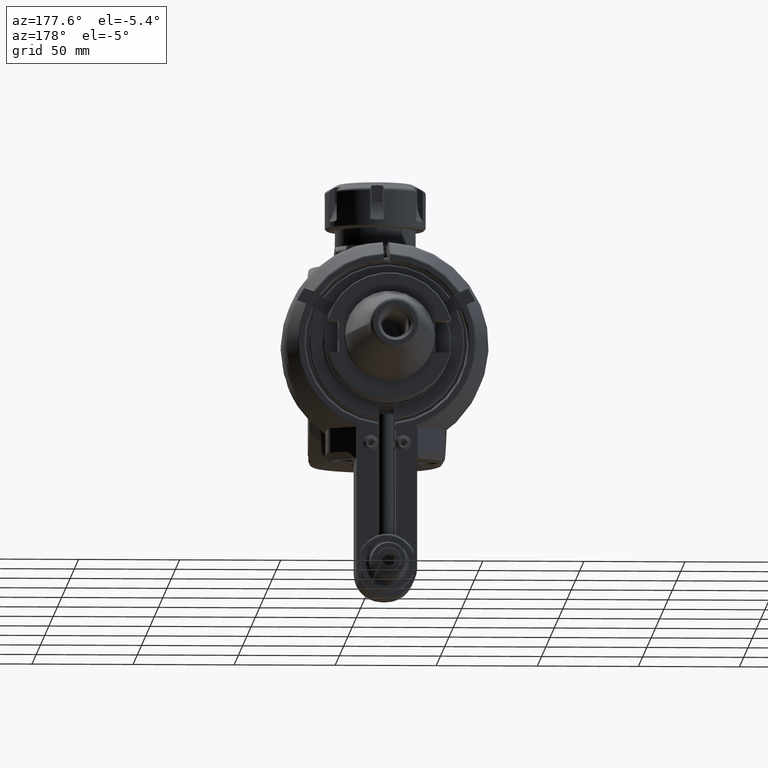
[diagram: clean part render]
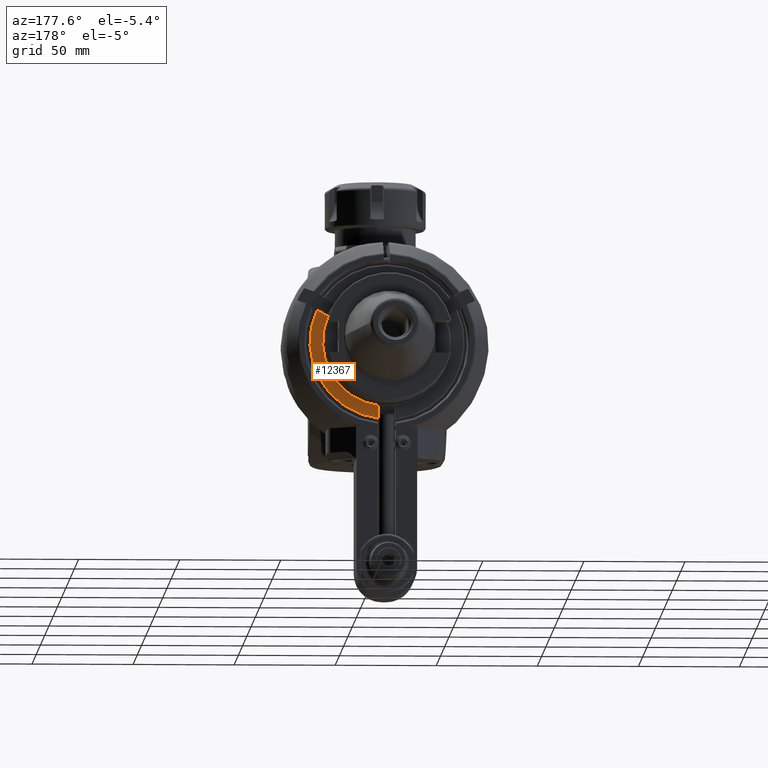
[diagram: same view with one face highlighted and labeled with its STEP entity id]
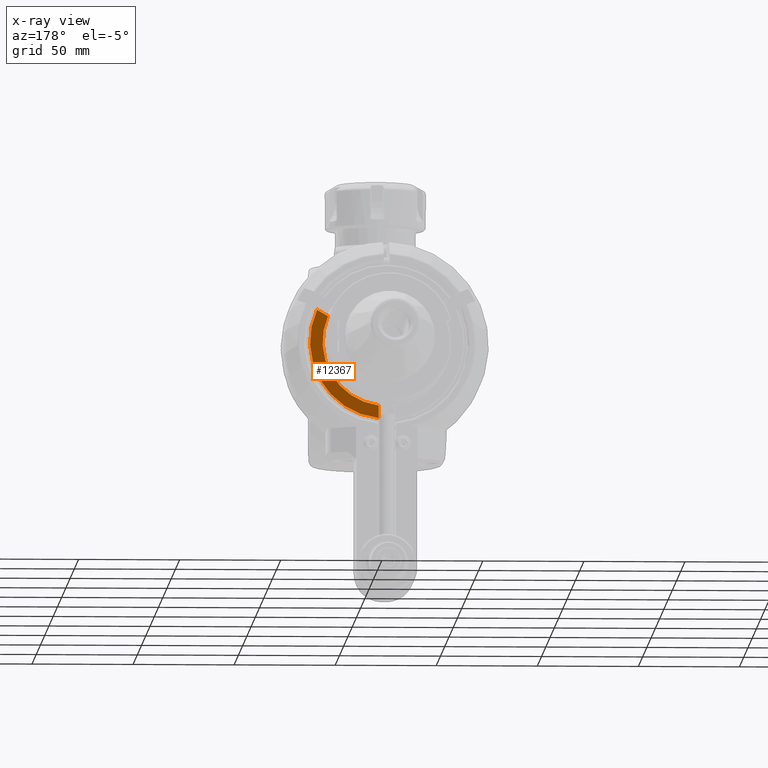
[diagram: x-ray of the same camera — body ghosted, the highlighted face saturated]
A machine part, auxiliary view. The second image highlights one B-rep face of the part: STEP entity #12367.
The next image is the same camera in x-ray: the body ghosted, the highlighted face saturated — about 0% of this face is hidden behind the body in this view.
In plain terms, the highlighted planar face has unit normal (0, 1, 0).
Its self-contained STEP definition (entity closure, byte-faithful):
#1474=LINE('',#28057,#2362);
#1479=LINE('',#28075,#2367);
#2362=VECTOR('',#16569,6.28197553114879);
#2367=VECTOR('',#16584,10.);
#3205=FACE_OUTER_BOUND('',#3949,.T.);
#3949=EDGE_LOOP('',(#10934,#10935,#10936,#10937));
#4547=CIRCLE('',#13534,31.75);
#4561=CIRCLE('',#13565,38.);
#5752=VERTEX_POINT('',#27965);
#5753=VERTEX_POINT('',#27969);
#5775=VERTEX_POINT('',#28053);
#5780=VERTEX_POINT('',#28074);
#7485=EDGE_CURVE('',#5753,#5752,#4547,.T.);
#7519=EDGE_CURVE('',#5752,#5775,#1474,.T.);
#7528=EDGE_CURVE('',#5780,#5753,#1479,.T.);
#7533=EDGE_CURVE('',#5775,#5780,#4561,.T.);
#10934=ORIENTED_EDGE('',*,*,#7533,.T.);
#10935=ORIENTED_EDGE('',*,*,#7528,.T.);
#10936=ORIENTED_EDGE('',*,*,#7485,.T.);
#10937=ORIENTED_EDGE('',*,*,#7519,.T.);
#11778=PLANE('',#13566);
#12367=ADVANCED_FACE('',(#3205),#11778,.T.);
#13534=AXIS2_PLACEMENT_3D('',#27970,#16514,#16515);
#13565=AXIS2_PLACEMENT_3D('',#28087,#16598,#16599);
#13566=AXIS2_PLACEMENT_3D('',#28088,#16600,#16601);
#16514=DIRECTION('center_axis',(0.,-1.,0.));
#16515=DIRECTION('ref_axis',(0.86926923622807,0.,0.494338947431283));
#16569=DIRECTION('',(0.866025403784429,0.,0.500000000000017));
#16584=DIRECTION('',(0.,0.,1.));
#16598=DIRECTION('center_axis',(0.,1.,0.));
#16599=DIRECTION('ref_axis',(0.908396800327097,0.,0.418109140243899));
#16600=DIRECTION('center_axis',(0.,1.,0.));
#16601=DIRECTION('ref_axis',(-0.86926923622807,0.,-0.494338947431283));
#27965=CARTESIAN_POINT('',(29.0787280165,39.,12.74715956369));
#27969=CARTESIAN_POINT('',(3.99951055760266,38.9985543943407,-31.4985430348102));
#27970=CARTESIAN_POINT('Origin',(0.,39.,0.));
#28053=CARTESIAN_POINT('',(34.51907841243,39.,15.88814732927));
#28057=CARTESIAN_POINT('',(29.0787280165,39.,12.74715956369));
#28074=CARTESIAN_POINT('',(4.,39.,-37.78888725538));
#28075=CARTESIAN_POINT('',(4.,39.,-24.55152642015));
#28087=CARTESIAN_POINT('Origin',(0.,39.,0.));
#28088=CARTESIAN_POINT('Origin',(-30.95404959954,39.,-17.6030528403));